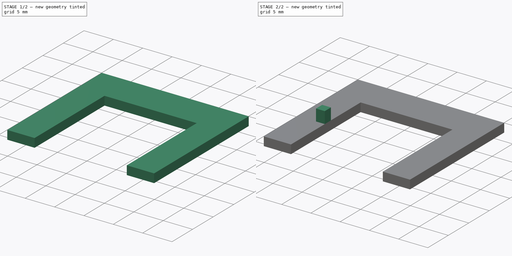
[diagram: build sequence overview — one tinted view per stage of 2, left to right]
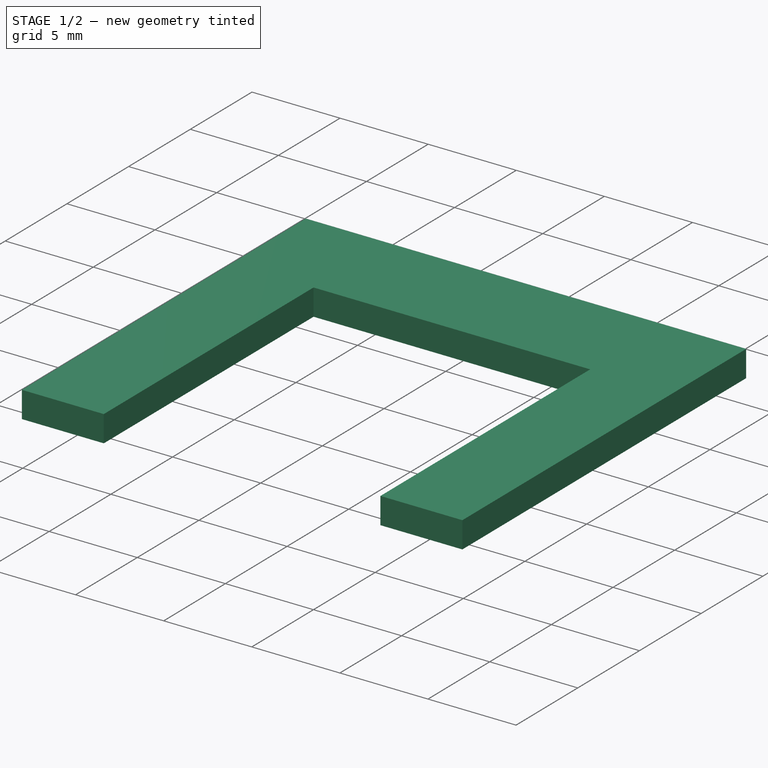
[diagram: stage 1 of 2 — iso view after this stage's code; geometry added in this stage tinted green]
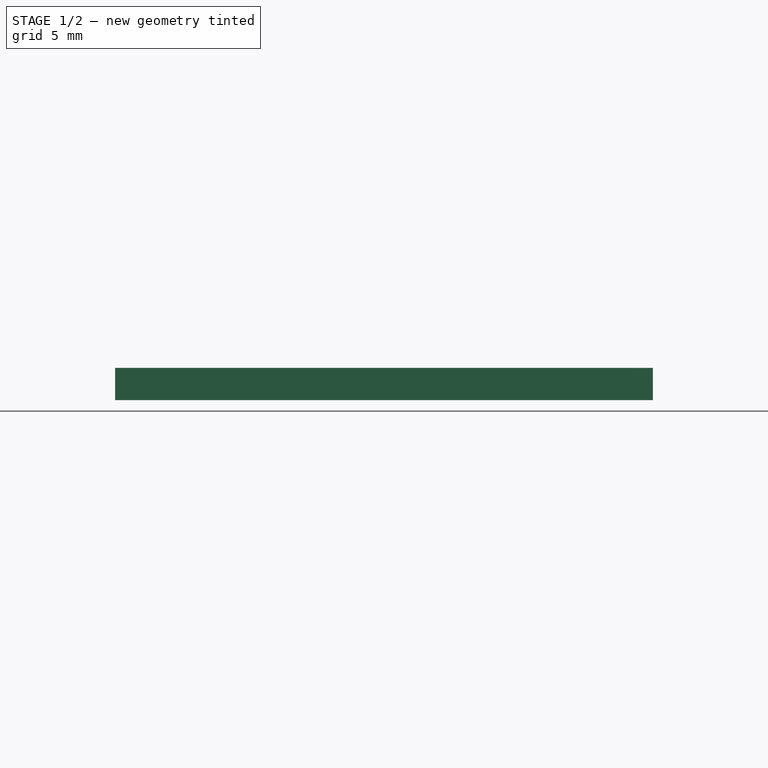
[diagram: stage 1 of 2 — front view after this stage's code; geometry added in this stage tinted green]
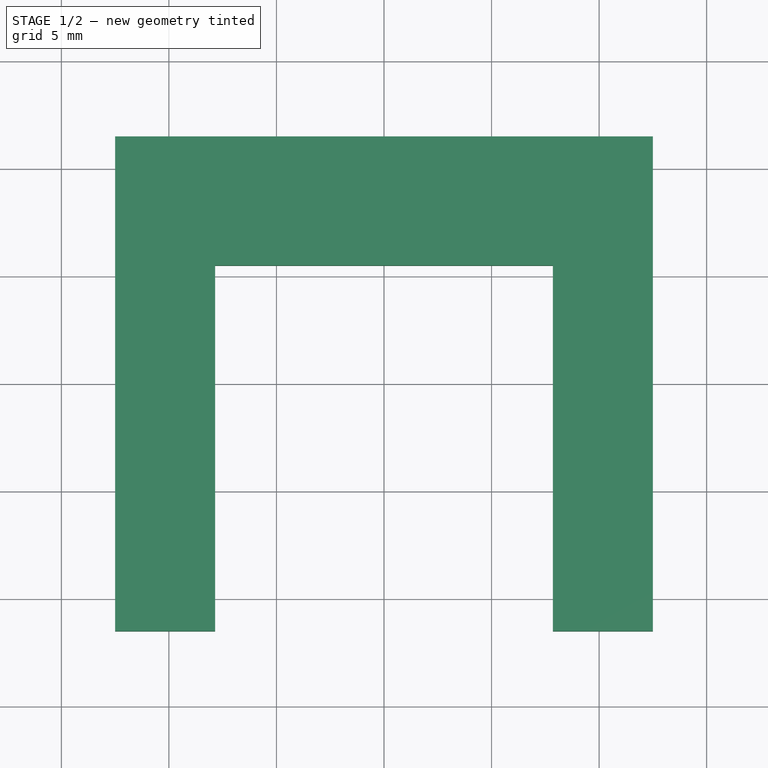
[diagram: stage 1 of 2 — top view after this stage's code; geometry added in this stage tinted green]
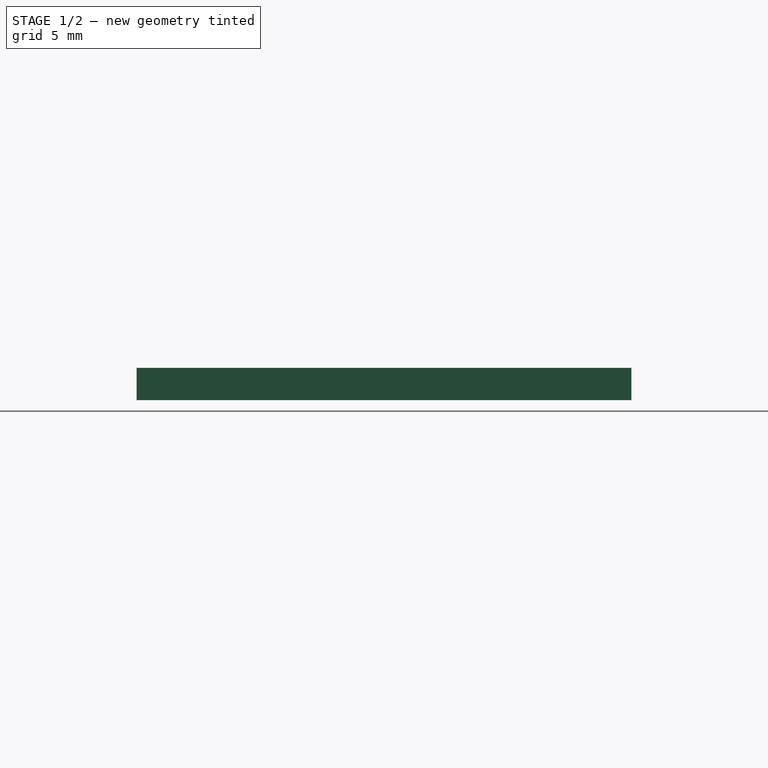
[diagram: stage 1 of 2 — right view after this stage's code; geometry added in this stage tinted green]
FCSTD DOCUMENT  (FreeCAD 0.22R36534 (Git))
Label: shaver repair
License: All rights reserved
LicenseURL: http://en.wikipedia.org/wiki/All_rights_reserved
objects: Sketcher::SketchObject×3, PartDesign::Pad×2, PartDesign::Pocket×1, PartDesign::Body×1
note: 10 computed .brp shape members not serialized (recipe doc carries the construction recipe); baked Part::Feature solids carry a one-line shape summary decoded from their .brp

FEATURE [Sketcher::SketchObject] Sketch
  AttachmentSupport = -> [XY_Plane]
  FullyConstrained = true
  MapMode = 5
  sketch-geometry (4):
    g0: LineSegment StartX=-12.5 StartY=11.5 StartZ=0 EndX=-12.5 EndY=-11.5 EndZ=0
    g1: LineSegment StartX=-12.5 StartY=-11.5 StartZ=0 EndX=12.5 EndY=-11.5 EndZ=0
    g2: LineSegment StartX=12.5 StartY=-11.5 StartZ=0 EndX=12.5 EndY=11.5 EndZ=0
    g3: LineSegment StartX=12.5 StartY=11.5 StartZ=0 EndX=-12.5 EndY=11.5 EndZ=0
  constraints (11):
    c: Coincident(g0,g1)
    c: Coincident(g1,g2)
    c: Coincident(g2,g3)
    c: Coincident(g3,g0)
    c: Vertical(g0)
    c: Vertical(g2)
    c: Horizontal(g1)
    c: Horizontal(g3)
    c: DistanceX(g3,g3) = 25
    c: DistanceY(g0,g0) = 23
    c: Symmetric(g0,g1,g-1)
FEATURE [PartDesign::Pad] Pad
  Direction = (0,0,1)
  Length = 1.5
  Length2 = 10
  Profile = -> Sketch
  ReferenceAxis = -> Sketch [N_Axis]
  Suppressed = false
  Type = 0
FEATURE [Sketcher::SketchObject] Sketch001
  AttachmentSupport = -> [Pad]
  ExternalGeometry = -> [Pad]
  FullyConstrained = true
  MapMode = 5
  Placement = pos=(0,0,1.5) rot=(0,0,1;0rad)
  sketch-geometry (5):
    g0: LineSegment StartX=-7.85 StartY=-11.5 StartZ=0 EndX=7.85 EndY=-11.5 EndZ=0
    g1: LineSegment StartX=7.85 StartY=-11.5 StartZ=0 EndX=7.85 EndY=5.5 EndZ=0
    g2: LineSegment StartX=7.85 StartY=5.5 StartZ=0 EndX=-7.85 EndY=5.5 EndZ=0
    g3: LineSegment StartX=-7.85 StartY=5.5 StartZ=0 EndX=-7.85 EndY=-11.5 EndZ=0
    g4: GeomPoint X=0 Y=5.5 Z=0
  constraints (13):
    c: Coincident(g0,g1)
    c: Coincident(g1,g2)
    c: Coincident(g2,g3)
    c: Coincident(g3,g0)
    c: Horizontal(g0)
    c: Horizontal(g2)
    c: Vertical(g1)
    c: Vertical(g3)
    c: PointOnObject(g0,g-5)
    c: DistanceX(g2,g2) = 15.7
    c: DistanceY(g1,g1) = 17
    c: Symmetric(g2,g1,g4)
    c: PointOnObject(g4,g-2)
FEATURE [PartDesign::Pocket] Pocket
  BaseFeature = -> Pad
  Direction = (0,0,-1)
  Length = 5
  Length2 = 5
  Profile = -> Sketch001
  ReferenceAxis = -> Sketch001 [N_Axis]
  Suppressed = false
  Type = 0
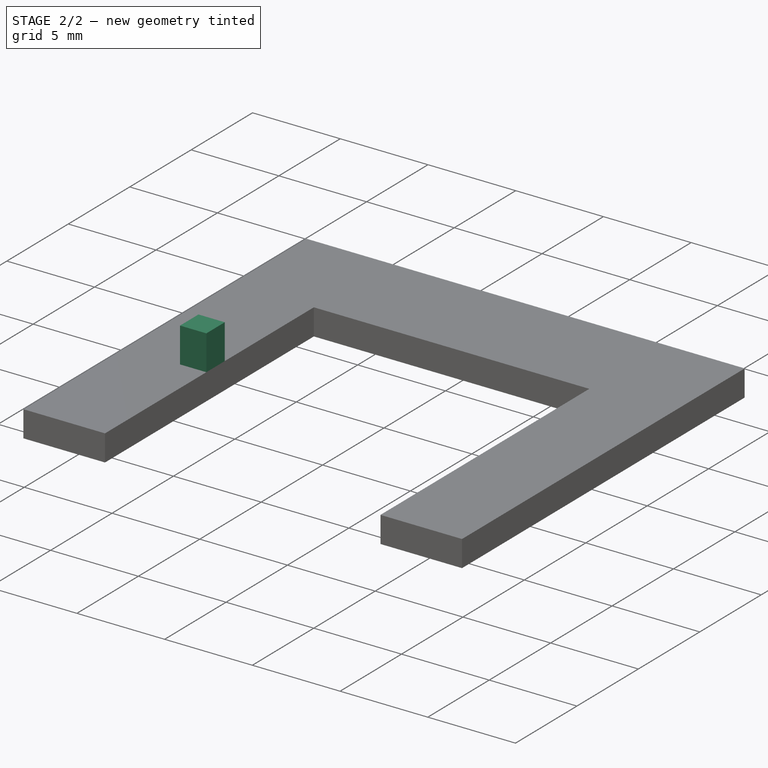
[diagram: stage 2 of 2 — iso view after this stage's code; geometry added in this stage tinted green]
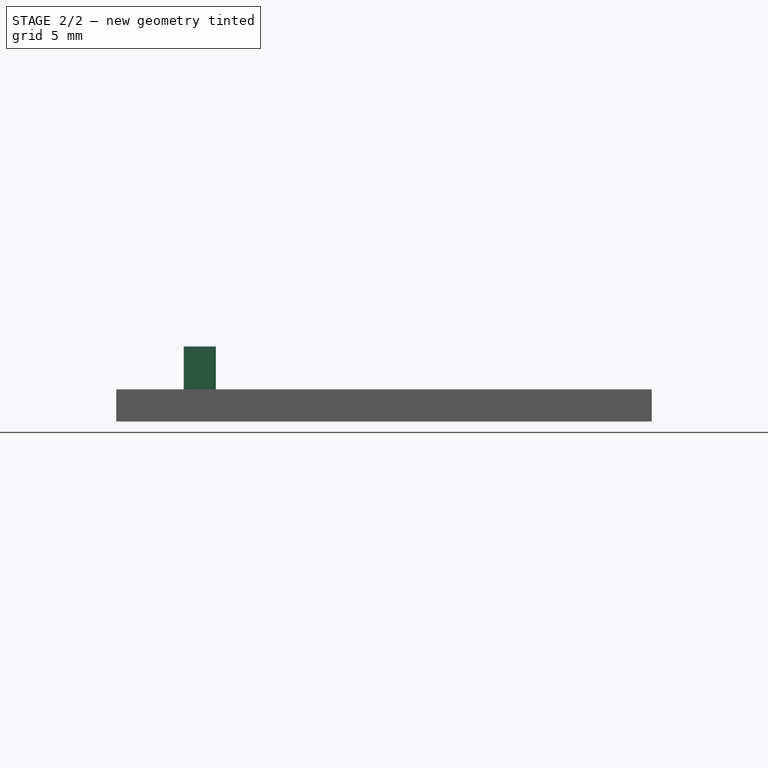
[diagram: stage 2 of 2 — front view after this stage's code; geometry added in this stage tinted green]
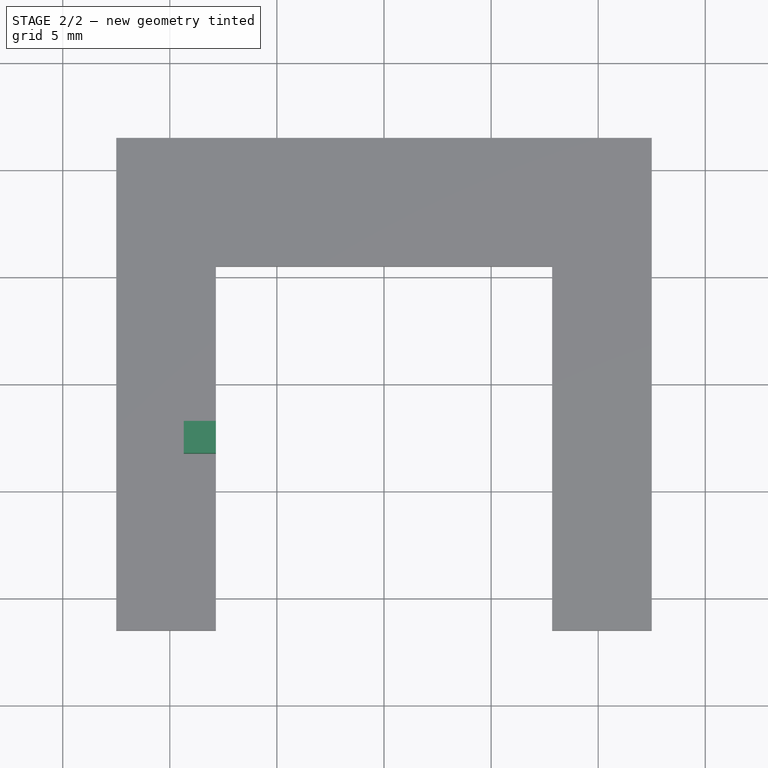
[diagram: stage 2 of 2 — top view after this stage's code; geometry added in this stage tinted green]
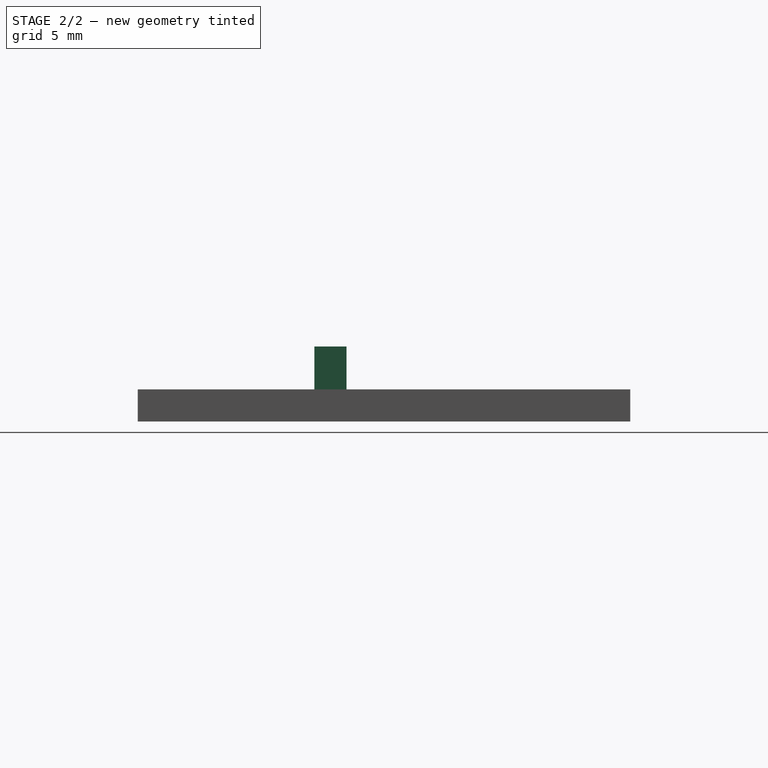
[diagram: stage 2 of 2 — right view after this stage's code; geometry added in this stage tinted green]
FEATURE [Sketcher::SketchObject] Sketch002
  AttachmentOffset = pos=(0,0,-1.5) rot=(0,0,1;0rad)
  AttachmentSupport = -> [Pocket]
  ExternalGeometry = -> [Pocket]
  FullyConstrained = true
  MapMode = 5
  Placement = pos=(0,0,1.5) rot=(1,0,0;3.14159rad)
  expr: .AttachmentOffset.Base.z = -Pad.Length
  sketch-geometry (5):
    g0: LineSegment StartX=-7.85 StartY=1.75 StartZ=0 EndX=-9.35 EndY=1.75 EndZ=0
    g1: LineSegment StartX=-9.35 StartY=1.75 StartZ=0 EndX=-9.35 EndY=3.25 EndZ=0
    g2: LineSegment StartX=-9.35 StartY=3.25 StartZ=0 EndX=-7.85 EndY=3.25 EndZ=0
    g3: LineSegment StartX=-7.85 StartY=3.25 StartZ=0 EndX=-7.85 EndY=1.75 EndZ=0
    g4: GeomPoint X=-9.35 Y=2.5 Z=0
  constraints (13):
    c: Coincident(g0,g1)
    c: Coincident(g1,g2)
    c: Coincident(g2,g3)
    c: Coincident(g3,g0)
    c: Horizontal(g0)
    c: Horizontal(g2)
    c: Vertical(g1)
    c: Vertical(g3)
    c: PointOnObject(g0,g-4)
    c: DistanceY(g1,g1) = 1.5
    c: DistanceX(g2,g2) = 1.5
    c: Symmetric(g1,g0,g4)
    c: DistanceY(g4,g-3) = 9
FEATURE [PartDesign::Pad] Pad001
  BaseFeature = -> Pocket
  Direction = (0,0,-1)
  Length = 2
  Length2 = 10
  Profile = -> Sketch002
  ReferenceAxis = -> Sketch002 [N_Axis]
  Reversed = true
  Suppressed = false
  Type = 0
FEATURE [PartDesign::Body] Body
  Group = -> [Sketch,Pad,Sketch001,Pocket,Sketch002,Pad001]
  Origin = -> Origin
  Tip = -> Pad001
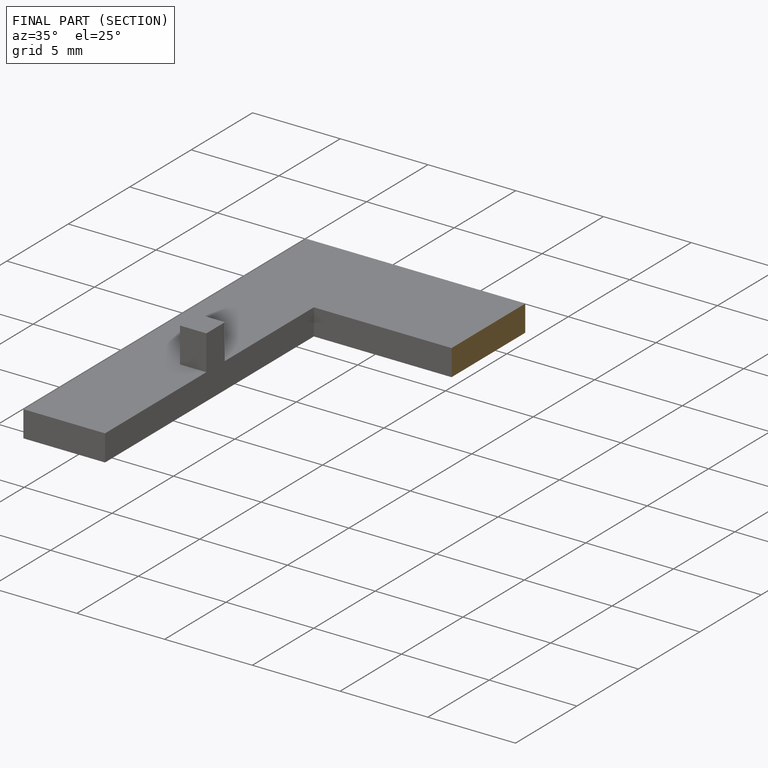
[diagram: finished part — half-section view (interior)]
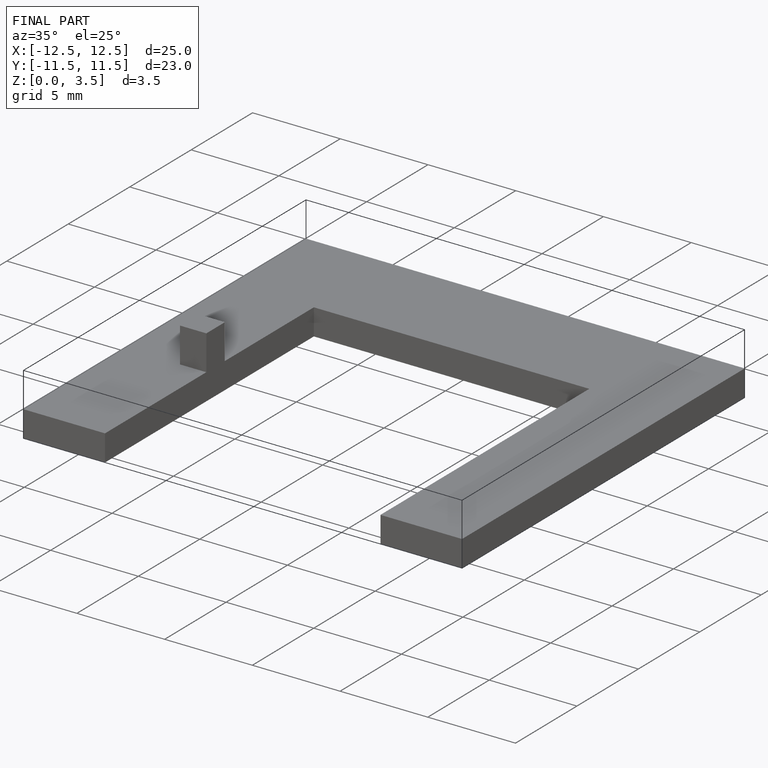
[diagram: finished part — iso view with bounding-box wireframe]
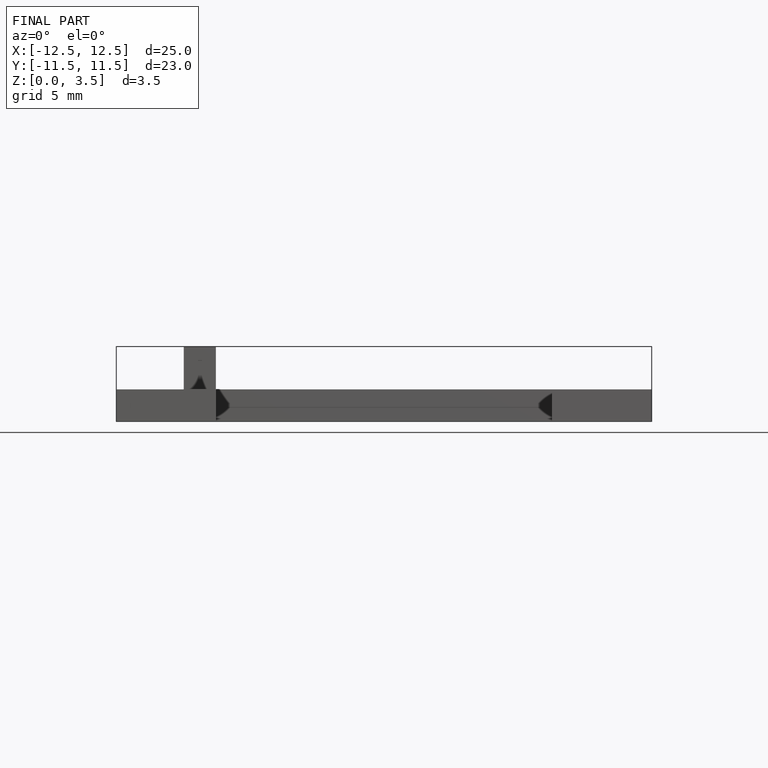
[diagram: finished part — front view with bounding-box wireframe]
